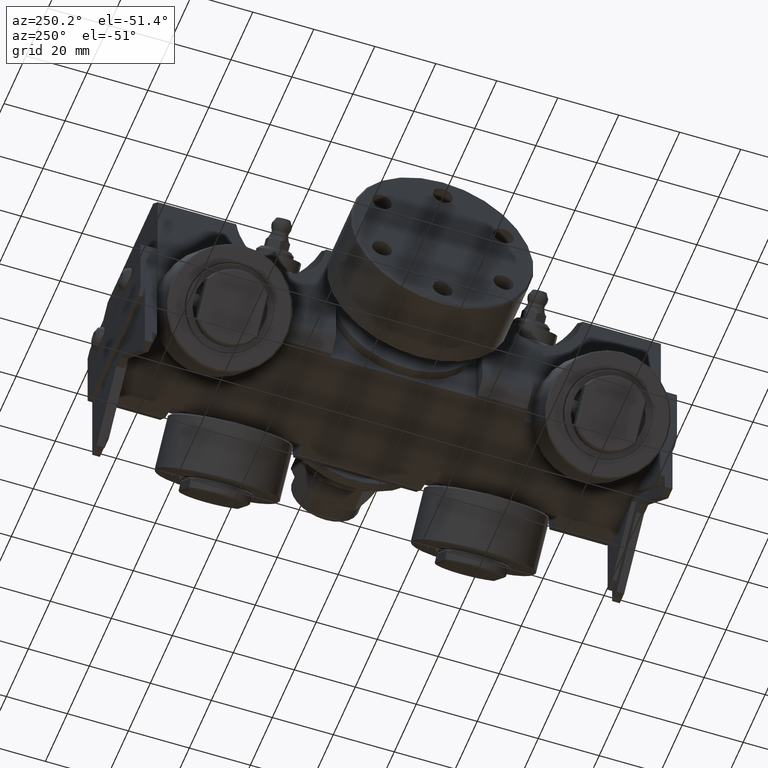
[diagram: clean part render]
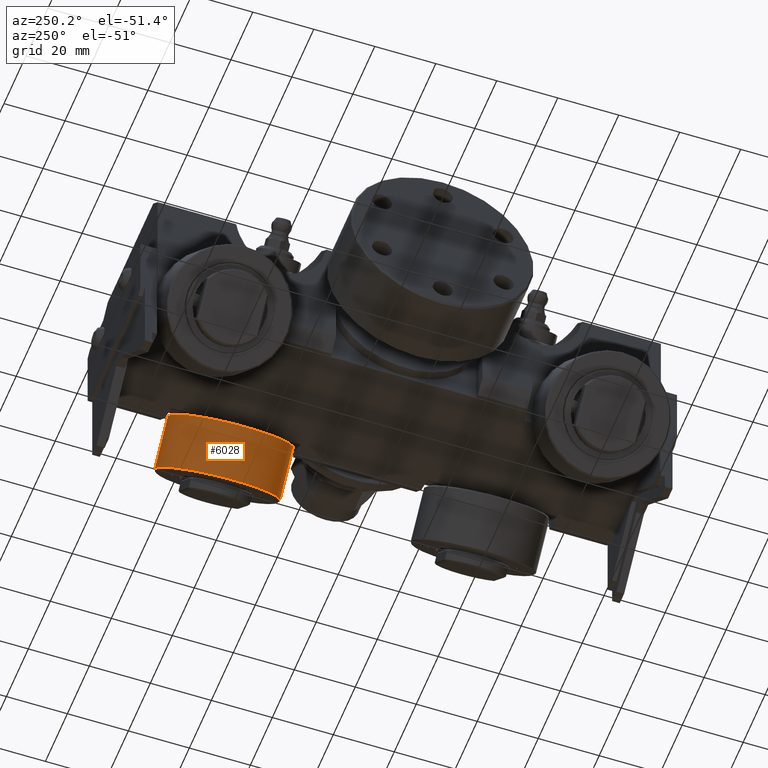
[diagram: same view with one face highlighted and labeled with its STEP entity id]
A machine part, auxiliary view. The second image highlights one B-rep face of the part: STEP entity #6028.
In plain terms, the highlighted cylindrical surface (bore or boss wall) has radius 20 mm, axis along (-0.7071, 0, 0.7071).
Its self-contained STEP definition (entity closure, byte-faithful):
#750=FACE_OUTER_BOUND('',#1108,.T.);
#1108=EDGE_LOOP('',(#4613,#4614,#4615,#4616,#4617,#4618));
#1503=CIRCLE('',#6915,20.);
#1504=CIRCLE('',#6916,20.);
#1505=CIRCLE('',#6918,20.);
#1506=CIRCLE('',#6919,20.);
#1988=LINE('',#10634,#2336);
#2336=VECTOR('',#8027,20.);
#2746=VERTEX_POINT('',#10627);
#2747=VERTEX_POINT('',#10629);
#2748=VERTEX_POINT('',#10633);
#2749=VERTEX_POINT('',#10635);
#3441=EDGE_CURVE('',#2746,#2747,#1503,.T.);
#3442=EDGE_CURVE('',#2747,#2746,#1504,.T.);
#3443=EDGE_CURVE('',#2747,#2748,#1988,.T.);
#3444=EDGE_CURVE('',#2749,#2748,#1505,.T.);
#3445=EDGE_CURVE('',#2748,#2749,#1506,.T.);
#4613=ORIENTED_EDGE('',*,*,#3441,.F.);
#4614=ORIENTED_EDGE('',*,*,#3442,.F.);
#4615=ORIENTED_EDGE('',*,*,#3443,.T.);
#4616=ORIENTED_EDGE('',*,*,#3444,.F.);
#4617=ORIENTED_EDGE('',*,*,#3445,.F.);
#4618=ORIENTED_EDGE('',*,*,#3443,.F.);
#5872=CYLINDRICAL_SURFACE('',#6917,20.);
#6028=ADVANCED_FACE('',(#750),#5872,.T.);
#6915=AXIS2_PLACEMENT_3D('',#10630,#8021,#8022);
#6916=AXIS2_PLACEMENT_3D('',#10631,#8023,#8024);
#6917=AXIS2_PLACEMENT_3D('',#10632,#8025,#8026);
#6918=AXIS2_PLACEMENT_3D('',#10636,#8028,#8029);
#6919=AXIS2_PLACEMENT_3D('',#10637,#8030,#8031);
#8021=DIRECTION('center_axis',(-1.,0.,0.));
#8022=DIRECTION('ref_axis',(0.,0.,-1.));
#8023=DIRECTION('center_axis',(-1.,0.,0.));
#8024=DIRECTION('ref_axis',(0.,0.,-1.));
#8025=DIRECTION('center_axis',(-1.,0.,0.));
#8026=DIRECTION('ref_axis',(0.,0.,1.));
#8027=DIRECTION('',(1.,0.,0.));
#8028=DIRECTION('center_axis',(1.,0.,0.));
#8029=DIRECTION('ref_axis',(0.,0.,-1.));
#8030=DIRECTION('center_axis',(1.,0.,0.));
#8031=DIRECTION('ref_axis',(0.,0.,-1.));
#10627=CARTESIAN_POINT('',(-8.5,2.44929359829471E-15,20.));
#10629=CARTESIAN_POINT('',(-8.5,-2.44929359829471E-15,-20.));
#10630=CARTESIAN_POINT('Origin',(-8.5,0.,0.));
#10631=CARTESIAN_POINT('Origin',(-8.5,0.,0.));
#10632=CARTESIAN_POINT('Origin',(0.,0.,0.));
#10633=CARTESIAN_POINT('',(8.5,-2.44929359829471E-15,-20.));
#10634=CARTESIAN_POINT('',(0.,-2.44929359829471E-15,-20.));
#10635=CARTESIAN_POINT('',(8.5,-2.44929359829471E-15,20.));
#10636=CARTESIAN_POINT('Origin',(8.5,0.,0.));
#10637=CARTESIAN_POINT('Origin',(8.5,0.,0.));